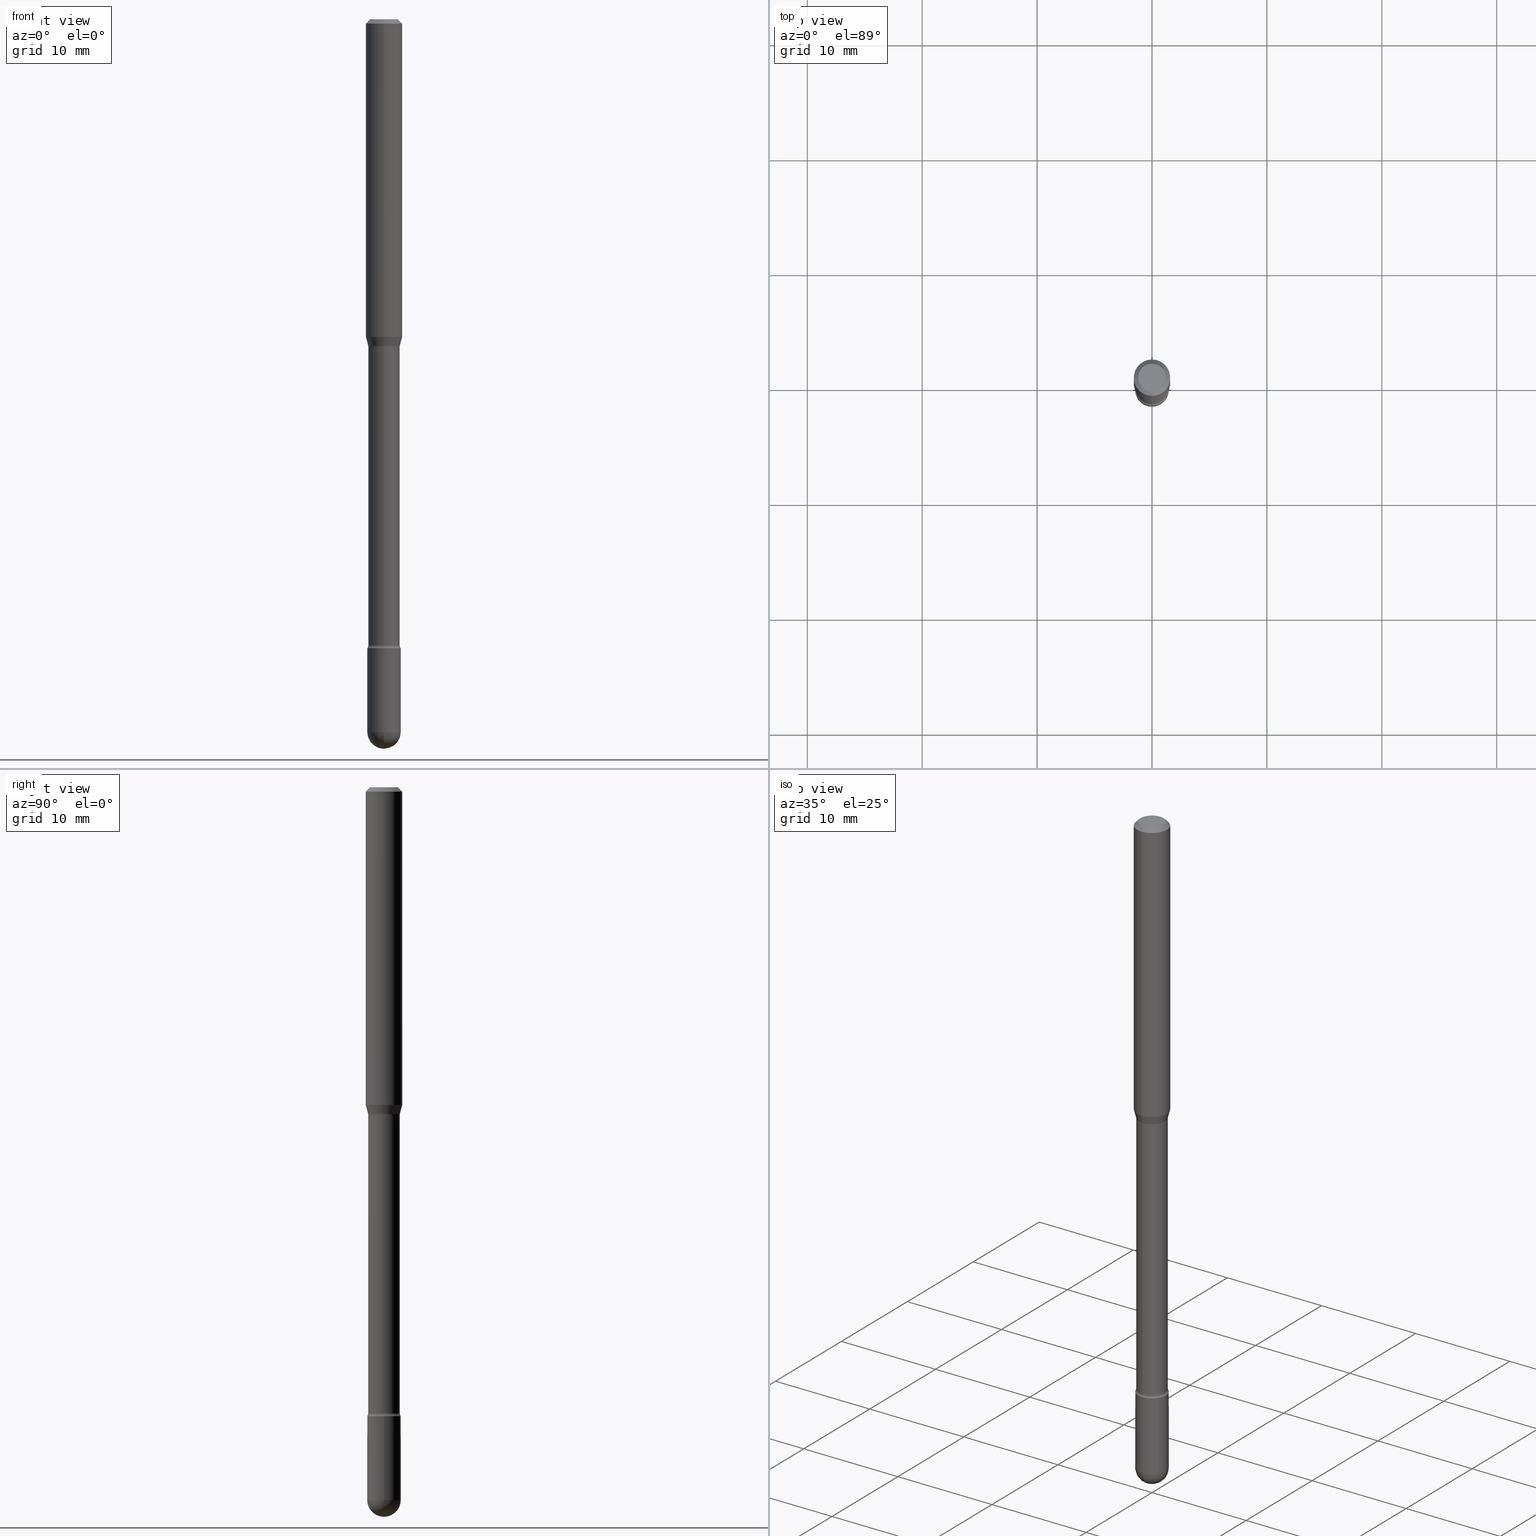
[diagram: canonical four-view strip — front | top / right | iso, engineering-drawing reading convention]
A machine part, canonical four-view strip (front | top / right | iso — engineering-drawing reading convention). The complete STEP part file that produces these views, byte-faithful:
ISO-10303-21;
HEADER;
FILE_DESCRIPTION (( 'STEP AP203' ),
    '1' );
FILE_NAME ('09348.STEP',
    '2024-04-09T22:45:30',
    ( '' ),
    ( '' ),
    'SwSTEP 2.0',
    'SolidWorks 2023',
    '' );
FILE_SCHEMA (( 'CONFIG_CONTROL_DESIGN' ));
ENDSEC;

DATA;
#1 = PLANE ( 'NONE',  #115 ) ;
#2 = PERSON ( 'UNSPECIFIED', 'UNSPECIFIED', 'UNSPECIFIED', ('UNSPECIFIED'), ('UNSPECIFIED'), ('UNSPECIFIED') ) ;
#3 = CARTESIAN_POINT ( 'NONE',  ( 2.734318658850203784E-29, -3.903715582805659800E-15, -1.118092501787273374 ) ) ;
#4 = EDGE_CURVE ( 'NONE', #555, #325, #185, .T. ) ;
#5 = CALENDAR_DATE ( 2024, 9, 4 ) ;
#6 = LINE ( 'NONE', #90, #408 ) ;
#7 = ORIENTED_EDGE ( 'NONE', *, *, #153, .F. ) ;
#8 = FACE_OUTER_BOUND ( 'NONE', #18, .T. ) ;
#9 = AXIS2_PLACEMENT_3D ( 'NONE', #434, #405, #26 ) ;
#10 = APPROVAL_PERSON_ORGANIZATION ( #554, #310, #152 ) ;
#11 = EDGE_CURVE ( 'NONE', #106, #548, #15, .T. ) ;
#12 = CARTESIAN_POINT ( 'NONE',  ( 2.734318658850203784E-29, -3.903715582805659800E-15, -1.118092501787273374 ) ) ;
#13 = CARTESIAN_POINT ( 'NONE',  ( -3.809982129783619050E-16, -0.05456111260566789273, -1.118092501787273374 ) ) ;
#14 = CARTESIAN_POINT ( 'NONE',  ( 4.440892098500625669E-16, 0.06250000000000000000, 2.598604840068803835E-16 ) ) ;
#15 = CIRCLE ( 'NONE', #534, 0.05750000000000000250 ) ;
#16 = DIRECTION ( 'NONE',  ( -2.445520969400464168E-29, 3.491406638149850481E-15, 1.000000000000000000 ) ) ;
#17 = CARTESIAN_POINT ( 'NONE',  ( 2.734318658850203784E-29, -3.903715582805659800E-15, -1.118092501787273374 ) ) ;
#18 = EDGE_LOOP ( 'NONE', ( #243, #456, #346, #506 ) ) ;
#19 = EDGE_CURVE ( 'NONE', #169, #106, #102, .T. ) ;
#20 = DIRECTION ( 'NONE',  ( 6.982962677686266711E-15, 1.000000000000000000, -4.751039988981321814E-15 ) ) ;
#21 = COORDINATED_UNIVERSAL_TIME_OFFSET ( 5, 0, .BEHIND. ) ;
#22 = ORIENTED_EDGE ( 'NONE', *, *, #140, .F. ) ;
#23 = CARTESIAN_POINT ( 'NONE',  ( 0.000000000000000000, 0.000000000000000000, 0.000000000000000000 ) ) ;
#24 = VERTEX_POINT ( 'NONE', #530 ) ;
#25 = TOROIDAL_SURFACE ( 'NONE', #557, 0.06905000000000012517, 0.01500000000000009139 ) ;
#26 = DIRECTION ( 'NONE',  ( -6.982962677686265922E-15, -1.000000000000000000, 2.503475335454092652E-15 ) ) ;
#27 = DIRECTION ( 'NONE',  ( -2.445520969400464168E-29, 3.491406638149850481E-15, 1.000000000000000000 ) ) ;
#28 = ORIENTED_EDGE ( 'NONE', *, *, #140, .T. ) ;
#29 = DIRECTION ( 'NONE',  ( -2.445520969400464168E-29, 3.491406638149850481E-15, 1.000000000000000000 ) ) ;
#30 = EDGE_LOOP ( 'NONE', ( #333, #32, #311, #60 ) ) ;
#31 = DIRECTION ( 'NONE',  ( -2.445520969400464168E-29, 3.491406638149850481E-15, 1.000000000000000000 ) ) ;
#32 = ORIENTED_EDGE ( 'NONE', *, *, #299, .F. ) ;
#33 = CIRCLE ( 'NONE', #286, 0.06250000000000000000 ) ;
#34 = CONICAL_SURFACE ( 'NONE', #229, 0.06250000000000000000, 0.7853981633974483900 ) ;
#35 = ORIENTED_EDGE ( 'NONE', *, *, #4, .F. ) ;
#36 = EDGE_CURVE ( 'NONE', #516, #161, #439, .T. ) ;
#37 = DIRECTION ( 'NONE',  ( -6.982962677686265922E-15, -1.000000000000000000, 4.751039988981327336E-15 ) ) ;
#38 = ORIENTED_EDGE ( 'NONE', *, *, #381, .F. ) ;
#39 = CARTESIAN_POINT ( 'NONE',  ( 3.963052108702488674E-16, 0.05404999999999254845, -2.145429341715430649 ) ) ;
#40 = AXIS2_PLACEMENT_3D ( 'NONE', #290, #372, #505 ) ;
#41 = CYLINDRICAL_SURFACE ( 'NONE', #486, 0.05405000000000002164 ) ;
#42 = EDGE_CURVE ( 'NONE', #548, #99, #6, .T. ) ;
#43 = EDGE_LOOP ( 'NONE', ( #264, #239, #499, #537, #212 ) ) ;
#44 = DIRECTION ( 'NONE',  ( -2.445520969400464168E-29, 3.491406638149850481E-15, 1.000000000000000000 ) ) ;
#45 = EDGE_CURVE ( 'NONE', #562, #341, #354, .T. ) ;
#46 = ADVANCED_FACE ( 'NONE', ( #353 ), #47, .T. ) ;
#47 = CONICAL_SURFACE ( 'NONE', #526, 0.05456111260566398613, 0.2617993877991491303 ) ;
#48 = FACE_OUTER_BOUND ( 'NONE', #426, .T. ) ;
#49 = CIRCLE ( 'NONE', #234, 0.05750000000000000250 ) ;
#50 = LOCAL_TIME ( 18, 45, 30.00000000000000000, #108 ) ;
#51 = DIRECTION ( 'NONE',  ( -2.445520969400463888E-29, 3.491406638149850481E-15, 1.000000000000000000 ) ) ;
#52 = DIRECTION ( 'NONE',  ( -2.445468806185136877E-29, 3.491481338843145188E-15, 1.000000000000000000 ) ) ;
#53 = DIRECTION ( 'NONE',  ( -6.982962677686265922E-15, -1.000000000000000000, 3.491406638149850876E-15 ) ) ;
#54 = SHAPE_DEFINITION_REPRESENTATION ( #133, #471 ) ;
#55 = EDGE_CURVE ( 'NONE', #341, #66, #165, .T. ) ;
#56 = EDGE_CURVE ( 'NONE', #109, #66, #307, .T. ) ;
#57 = TOROIDAL_SURFACE ( 'NONE', #385, 0.06905000000000000027, 0.01499999999999998904 ) ;
#58 = LOCAL_TIME ( 18, 45, 30.00000000000000000, #166 ) ;
#59 = DIRECTION ( 'NONE',  ( -2.445468806185136597E-29, 3.491481338843145583E-15, 1.000000000000000000 ) ) ;
#60 = ORIENTED_EDGE ( 'NONE', *, *, #4, .T. ) ;
#61 = DIRECTION ( 'NONE',  ( 2.445520969400464168E-29, -3.491406638149850481E-15, -1.000000000000000000 ) ) ;
#62 = APPROVAL_ROLE ( '' ) ;
#63 = ORIENTED_EDGE ( 'NONE', *, *, #240, .F. ) ;
#64 = DIRECTION ( 'NONE',  ( 2.445520969400464168E-29, -3.491406638149850481E-15, -1.000000000000000000 ) ) ;
#65 = DATE_AND_TIME ( #291, #50 ) ;
#66 = VERTEX_POINT ( 'NONE', #273 ) ;
#67 = CIRCLE ( 'NONE', #247, 0.05405000000000000776 ) ;
#68 = CYLINDRICAL_SURFACE ( 'NONE', #416, 0.05750000000000000250 ) ;
#69 = ORIENTED_EDGE ( 'NONE', *, *, #494, .F. ) ;
#70 = EDGE_LOOP ( 'NONE', ( #22, #82, #422, #338 ) ) ;
#71 = EDGE_CURVE ( 'NONE', #109, #562, #429, .T. ) ;
#72 = DIRECTION ( 'NONE',  ( -2.445468806185136597E-29, 3.491481338843145583E-15, 1.000000000000000000 ) ) ;
#73 = APPROVAL_DATE_TIME ( #201, #136 ) ;
#74 = ORIENTED_EDGE ( 'NONE', *, *, #56, .F. ) ;
#75 = CARTESIAN_POINT ( 'NONE',  ( -3.809982129783619050E-16, -0.05456111260566789273, -1.118092501787273374 ) ) ;
#76 = CARTESIAN_POINT ( 'NONE',  ( -1.169113584055446105E-44, 1.669184350826100908E-30, 4.780733988912460139E-16 ) ) ;
#77 = ADVANCED_FACE ( 'NONE', ( #178 ), #420, .F. ) ;
#78 = ORIENTED_EDGE ( 'NONE', *, *, #153, .T. ) ;
#79 = EDGE_CURVE ( 'NONE', #113, #106, #80, .T. ) ;
#80 = CIRCLE ( 'NONE', #440, 0.05750000000000007189 ) ;
#81 = LOCAL_TIME ( 18, 45, 30.00000000000000000, #21 ) ;
#82 = ORIENTED_EDGE ( 'NONE', *, *, #541, .T. ) ;
#83 = MANIFOLD_SOLID_BREP ( 'Body-Move/Copy2[1]', #93 ) ;
#84 = ORIENTED_EDGE ( 'NONE', *, *, #498, .T. ) ;
#85 = ORIENTED_EDGE ( 'NONE', *, *, #175, .T. ) ;
#86 = AXIS2_PLACEMENT_3D ( 'NONE', #12, #406, #190 ) ;
#87 = DIRECTION ( 'NONE',  ( -2.445520969400464168E-29, 3.491406638149850481E-15, 1.000000000000000000 ) ) ;
#88 = AXIS2_PLACEMENT_3D ( 'NONE', #458, #29, #252 ) ;
#89 = CARTESIAN_POINT ( 'NONE',  ( 0.05750000000000000250, -7.925662639173940169E-15, -2.155000000000000249 ) ) ;
#90 = CARTESIAN_POINT ( 'NONE',  ( 0.05750000000000000250, -4.015203539669603161E-16, 2.803801646082662941E-30 ) ) ;
#91 = FACE_OUTER_BOUND ( 'NONE', #70, .T. ) ;
#92 = DIRECTION ( 'NONE',  ( -2.445520969400464168E-29, 3.491406638149850481E-15, 1.000000000000000000 ) ) ;
#93 = CLOSED_SHELL ( 'NONE', ( #124, #284, #226, #122, #363 ) ) ;
#94 = AXIS2_PLACEMENT_3D ( 'NONE', #17, #230, #402 ) ;
#95 = DIRECTION ( 'NONE',  ( -2.438088387897960049E-29, 3.491481338843145188E-15, 1.000000000000000000 ) ) ;
#96 = CIRCLE ( 'NONE', #40, 0.05750000000000000250 ) ;
#97 = UNCERTAINTY_MEASURE_WITH_UNIT (LENGTH_MEASURE( 1.000000000000000082E-05 ), #549, 'distance_accuracy_value', 'NONE');
#98 = FACE_OUTER_BOUND ( 'NONE', #327, .T. ) ;
#99 = VERTEX_POINT ( 'NONE', #89 ) ;
#100 = CARTESIAN_POINT ( 'NONE',  ( 3.840483486783342056E-16, 0.05405000000000002164, 2.893628700992465494E-16 ) ) ;
#101 = CARTESIAN_POINT ( 'NONE',  ( 5.973057559107196227E-29, -8.527943170124383355E-15, -2.442499999999999893 ) ) ;
#102 = CIRCLE ( 'NONE', #205, 0.05750000000000000250 ) ;
#103 = CIRCLE ( 'NONE', #308, 0.06250000000000000000 ) ;
#104 = CARTESIAN_POINT ( 'NONE',  ( 3.668281454100716606E-31, -5.237109957224805058E-17, -0.01500000000000008271 ) ) ;
#105 = COORDINATED_UNIVERSAL_TIME_OFFSET ( 5, 0, .BEHIND. ) ;
#106 = VERTEX_POINT ( 'NONE', #520 ) ;
#107 = DIRECTION ( 'NONE',  ( 6.982962677686265922E-15, 1.000000000000000000, -3.483106191921935554E-15 ) ) ;
#108 = COORDINATED_UNIVERSAL_TIME_OFFSET ( 5, 0, .BEHIND. ) ;
#109 = VERTEX_POINT ( 'NONE', #306 ) ;
#110 = ADVANCED_FACE ( 'NONE', ( #437 ), #351, .T. ) ;
#111 = CARTESIAN_POINT ( 'NONE',  ( -3.774291327288904667E-16, -0.05405000000000752258, -2.145429341715430205 ) ) ;
#112 = PERSON_AND_ORGANIZATION ( #2, #259 ) ;
#113 = VERTEX_POINT ( 'NONE', #347 ) ;
#114 = AXIS2_PLACEMENT_3D ( 'NONE', #132, #217, #172 ) ;
#115 = AXIS2_PLACEMENT_3D ( 'NONE', #179, #442, #120 ) ;
#116 = EDGE_CURVE ( 'NONE', #521, #154, #131, .T. ) ;
#117 = DIRECTION ( 'NONE',  ( -6.982962677686265922E-15, -1.000000000000000000, 3.483106191921935554E-15 ) ) ;
#118 = DIRECTION ( 'NONE',  ( -2.445468806185136597E-29, 3.491481338843145583E-15, 1.000000000000000000 ) ) ;
#119 = DIRECTION ( 'NONE',  ( -6.982962677686265922E-15, -1.000000000000000000, 3.491406638149850087E-15 ) ) ;
#120 = DIRECTION ( 'NONE',  ( 6.982962677686265922E-15, 1.000000000000000000, -3.491406638149850481E-15 ) ) ;
#121 = ORIENTED_EDGE ( 'NONE', *, *, #375, .F. ) ;
#122 = ADVANCED_FACE ( 'NONE', ( #98 ), #495, .T. ) ;
#123 = ORIENTED_EDGE ( 'NONE', *, *, #79, .F. ) ;
#124 = ADVANCED_FACE ( 'NONE', ( #447 ), #138, .T. ) ;
#125 = CC_DESIGN_DATE_AND_TIME_ASSIGNMENT ( #65, #418, ( #156 ) ) ;
#126 = AXIS2_PLACEMENT_3D ( 'NONE', #101, #287, #20 ) ;
#127 = VECTOR ( 'NONE', #374, 39.37007874015748143 ) ;
#128 = LOCAL_TIME ( 18, 45, 30.00000000000000000, #222 ) ;
#129 = ORIENTED_EDGE ( 'NONE', *, *, #55, .T. ) ;
#130 = EDGE_LOOP ( 'NONE', ( #7, #552, #480, #483 ) ) ;
#131 = LINE ( 'NONE', #312, #193 ) ;
#132 = CARTESIAN_POINT ( 'NONE',  ( 4.015203539670130219E-16, 0.05749999999999248074, -2.155000000000000249 ) ) ;
#133 = PRODUCT_DEFINITION_SHAPE ( 'NONE', 'NONE',  #275 ) ;
#134 = AXIS2_PLACEMENT_3D ( 'NONE', #463, #501, #508 ) ;
#135 = LOCAL_TIME ( 18, 45, 30.00000000000000000, #105 ) ;
#136 = APPROVAL ( #160, 'UNSPECIFIED' ) ;
#137 = CARTESIAN_POINT ( 'NONE',  ( 4.906297590423765932E-16, 0.06904999999999608673, -1.121974787463811518 ) ) ;
#138 = CYLINDRICAL_SURFACE ( 'NONE', #479, 0.05750000000000000250 ) ;
#139 = DESIGN_CONTEXT ( 'detailed design', #496, 'design' ) ;
#140 = EDGE_CURVE ( 'NONE', #433, #289, #322, .T. ) ;
#141 = CARTESIAN_POINT ( 'NONE',  ( -4.364351673553916201E-16, -0.06250000000000000000, 6.962863137756116444E-16 ) ) ;
#142 = CARTESIAN_POINT ( 'NONE',  ( -4.364351673553912750E-16, -0.06250000000000005551, -0.01499999999999986587 ) ) ;
#143 = CIRCLE ( 'NONE', #296, 0.01500000000000009659 ) ;
#144 = DIRECTION ( 'NONE',  ( -1.000000000000000000, 6.982962677686266711E-15, -4.883557194083112901E-29 ) ) ;
#145 = TOROIDAL_SURFACE ( 'NONE', #457, 0.06905000000000012517, 0.01500000000000009139 ) ;
#146 = CARTESIAN_POINT ( 'NONE',  ( 4.440892098500893388E-16, 0.06249999999999993755, -0.01500000000000030129 ) ) ;
#147 = ORIENTED_EDGE ( 'NONE', *, *, #79, .T. ) ;
#148 = SPHERICAL_SURFACE ( 'NONE', #126, 0.05750000000000007189 ) ;
#149 = EDGE_LOOP ( 'NONE', ( #74, #423, #461, #129 ) ) ;
#150 = DIRECTION ( 'NONE',  ( -6.982962677686265922E-15, -1.000000000000000000, 4.751039988981327336E-15 ) ) ;
#151 = DIRECTION ( 'NONE',  ( -2.445520969400464168E-29, 3.491406638149850481E-15, 1.000000000000000000 ) ) ;
#152 = APPROVAL_ROLE ( '' ) ;
#153 = EDGE_CURVE ( 'NONE', #24, #154, #319, .T. ) ;
#154 = VERTEX_POINT ( 'NONE', #146 ) ;
#155 = CLOSED_SHELL ( 'NONE', ( #277, #487, #260, #318, #401, #46, #192, #313, #348, #476, #77, #512, #110, #515 ) ) ;
#156 = SECURITY_CLASSIFICATION ( '', '', #158 ) ;
#157 = FACE_OUTER_BOUND ( 'NONE', #130, .T. ) ;
#158 = SECURITY_CLASSIFICATION_LEVEL ( 'unclassified' ) ;
#159 = DIRECTION ( 'NONE',  ( 1.000000000000000000, -6.982962677686265922E-15, 4.876176775795935232E-29 ) ) ;
#160 = APPROVAL_STATUS ( 'not_yet_approved' ) ;
#161 = VERTEX_POINT ( 'NONE', #142 ) ;
#162 = CARTESIAN_POINT ( 'NONE',  ( 2.661861953829350212E-29, -3.800271030886609778E-15, -1.088464170676043397 ) ) ;
#163 = ORIENTED_EDGE ( 'NONE', *, *, #381, .T. ) ;
#164 = DIRECTION ( 'NONE',  ( 0.000000000000000000, 0.000000000000000000, 1.000000000000000000 ) ) ;
#165 = CIRCLE ( 'NONE', #448, 0.05405000000000000776 ) ;
#166 = COORDINATED_UNIVERSAL_TIME_OFFSET ( 5, 0, .BEHIND. ) ;
#167 = ORIENTED_EDGE ( 'NONE', *, *, #71, .T. ) ;
#168 =( NAMED_UNIT ( * ) PLANE_ANGLE_UNIT ( ) SI_UNIT ( $, .RADIAN. ) );
#169 = VERTEX_POINT ( 'NONE', #317 ) ;
#170 = APPROVAL_DATE_TIME ( #182, #444 ) ;
#171 = ORIENTED_EDGE ( 'NONE', *, *, #116, .T. ) ;
#172 = DIRECTION ( 'NONE',  ( -6.982962677686265922E-15, -1.000000000000000000, 3.491406638149850481E-15 ) ) ;
#173 = AXIS2_PLACEMENT_3D ( 'NONE', #279, #194, #361 ) ;
#174 = AXIS2_PLACEMENT_3D ( 'NONE', #453, #196, #53 ) ;
#175 = EDGE_CURVE ( 'NONE', #377, #99, #49, .T. ) ;
#176 = ORIENTED_EDGE ( 'NONE', *, *, #281, .F. ) ;
#177 = DIRECTION ( 'NONE',  ( -6.982962677686265922E-15, -1.000000000000000000, 3.491406638149850876E-15 ) ) ;
#178 = FACE_OUTER_BOUND ( 'NONE', #297, .T. ) ;
#179 = CARTESIAN_POINT ( 'NONE',  ( 3.316907271900976096E-16, 0.04749999999999999362, 3.181959395626671891E-17 ) ) ;
#180 = DIRECTION ( 'NONE',  ( -2.445520969400464168E-29, 3.491406638149850481E-15, 1.000000000000000000 ) ) ;
#181 = CC_DESIGN_PERSON_AND_ORGANIZATION_ASSIGNMENT ( #438, #543, ( #383 ) ) ;
#182 = DATE_AND_TIME ( #5, #128 ) ;
#183 = DIRECTION ( 'NONE',  ( -7.105427357601000281E-15, -1.000000000000000000, 0.000000000000000000 ) ) ;
#184 = EDGE_CURVE ( 'NONE', #289, #341, #403, .T. ) ;
#185 = CIRCLE ( 'NONE', #500, 0.05750000000000000250 ) ;
#186 =( GEOMETRIC_REPRESENTATION_CONTEXT ( 3 ) GLOBAL_UNCERTAINTY_ASSIGNED_CONTEXT ( ( #97 ) ) GLOBAL_UNIT_ASSIGNED_CONTEXT ( ( #549, #168, #378 ) ) REPRESENTATION_CONTEXT ( 'NONE', 'WORKASPACE' ) );
#187 = ORIENTED_EDGE ( 'NONE', *, *, #19, .F. ) ;
#188 = PLANE ( 'NONE',  #545 ) ;
#189 = EDGE_CURVE ( 'NONE', #289, #555, #143, .T. ) ;
#190 = DIRECTION ( 'NONE',  ( -6.982962677686265922E-15, -1.000000000000000000, 2.503475335454092652E-15 ) ) ;
#191 = CARTESIAN_POINT ( 'NONE',  ( -3.773273898774340269E-16, -0.04749999999999999362, 8.309123495764096465E-17 ) ) ;
#192 = ADVANCED_FACE ( 'NONE', ( #48 ), #467, .T. ) ;
#193 = VECTOR ( 'NONE', #314, 39.37007874015748143 ) ;
#194 = DIRECTION ( 'NONE',  ( -2.445468806185136597E-29, 3.491481338843145583E-15, 1.000000000000000000 ) ) ;
#195 = ORIENTED_EDGE ( 'NONE', *, *, #366, .F. ) ;
#196 = DIRECTION ( 'NONE',  ( -2.445520969400464168E-29, 3.491406638149850481E-15, 1.000000000000000000 ) ) ;
#197 = DIRECTION ( 'NONE',  ( 6.982962677686266711E-15, 1.000000000000000000, -4.751039988981321814E-15 ) ) ;
#198 = ORIENTED_EDGE ( 'NONE', *, *, #240, .T. ) ;
#199 = CC_DESIGN_DATE_AND_TIME_ASSIGNMENT ( #547, #288, ( #275 ) ) ;
#200 = DIRECTION ( 'NONE',  ( -6.982962677686265922E-15, -1.000000000000000000, 3.491406638149850876E-15 ) ) ;
#201 = DATE_AND_TIME ( #474, #81 ) ;
#202 = EDGE_LOOP ( 'NONE', ( #69, #28, #261, #263 ) ) ;
#203 = EDGE_CURVE ( 'NONE', #562, #109, #359, .T. ) ;
#204 = CARTESIAN_POINT ( 'NONE',  ( 3.668281454100716606E-31, -5.237109957224805058E-17, -0.01500000000000008271 ) ) ;
#205 = AXIS2_PLACEMENT_3D ( 'NONE', #564, #343, #484 ) ;
#206 = CC_DESIGN_APPROVAL ( #444, ( #156 ) ) ;
#207 = FACE_OUTER_BOUND ( 'NONE', #30, .T. ) ;
#208 = CARTESIAN_POINT ( 'NONE',  ( -1.169113584055446105E-44, 1.669184350826100908E-30, 4.780733988912460139E-16 ) ) ;
#209 = ORIENTED_EDGE ( 'NONE', *, *, #404, .T. ) ;
#210 = FACE_OUTER_BOUND ( 'NONE', #149, .T. ) ;
#211 = DIRECTION ( 'NONE',  ( -6.982962677686265922E-15, -1.000000000000000000, 3.483106191921935554E-15 ) ) ;
#212 = ORIENTED_EDGE ( 'NONE', *, *, #175, .F. ) ;
#213 = AXIS2_PLACEMENT_3D ( 'NONE', #208, #151, #285 ) ;
#214 = PRODUCT_DEFINITION_FORMATION_WITH_SPECIFIED_SOURCE ( 'ANY', '', #383, .NOT_KNOWN. ) ;
#215 = EDGE_LOOP ( 'NONE', ( #292, #502, #544, #395 ) ) ;
#216 = ORIENTED_EDGE ( 'NONE', *, *, #489, .F. ) ;
#217 = DIRECTION ( 'NONE',  ( -2.445520969400463888E-29, 3.491406638149850481E-15, 1.000000000000000000 ) ) ;
#218 = EDGE_CURVE ( 'NONE', #169, #377, #323, .T. ) ;
#219 = CARTESIAN_POINT ( 'NONE',  ( 5.973057559107196227E-29, -8.527943170124383355E-15, -2.442499999999999893 ) ) ;
#220 = CIRCLE ( 'NONE', #236, 0.04749999999999999362 ) ;
#221 = DIRECTION ( 'NONE',  ( -6.982962677686266711E-15, -1.000000000000000000, 3.491406638149851270E-15 ) ) ;
#222 = COORDINATED_UNIVERSAL_TIME_OFFSET ( 5, 0, .BEHIND. ) ;
#223 = EDGE_LOOP ( 'NONE', ( #176, #147, #187, #63 ) ) ;
#224 = DIRECTION ( 'NONE',  ( -2.445520969400463888E-29, 3.491406638149850481E-15, 1.000000000000000000 ) ) ;
#225 = CARTESIAN_POINT ( 'NONE',  ( -4.821735728941850689E-16, -0.06905000000000760529, -2.145429341715430205 ) ) ;
#226 = ADVANCED_FACE ( 'NONE', ( #491 ), #188, .T. ) ;
#227 = AXIS2_PLACEMENT_3D ( 'NONE', #357, #92, #232 ) ;
#228 = CC_DESIGN_PERSON_AND_ORGANIZATION_ASSIGNMENT ( #380, #411, ( #275 ) ) ;
#229 = AXIS2_PLACEMENT_3D ( 'NONE', #204, #61, #107 ) ;
#230 = DIRECTION ( 'NONE',  ( -2.445520969400464168E-29, 3.491406638149850481E-15, 1.000000000000000000 ) ) ;
#231 = LINE ( 'NONE', #13, #315 ) ;
#232 = DIRECTION ( 'NONE',  ( -6.982962677686265922E-15, -1.000000000000000000, 5.054297860618430366E-15 ) ) ;
#233 = CARTESIAN_POINT ( 'NONE',  ( -4.364351673553650454E-16, -0.06250000000000381639, -1.088464170676042952 ) ) ;
#234 = AXIS2_PLACEMENT_3D ( 'NONE', #280, #320, #235 ) ;
#235 = DIRECTION ( 'NONE',  ( 1.000000000000000000, -6.982962677686273810E-15, 0.000000000000000000 ) ) ;
#236 = AXIS2_PLACEMENT_3D ( 'NONE', #294, #462, #237 ) ;
#237 = DIRECTION ( 'NONE',  ( -6.982962677686266711E-15, -1.000000000000000000, 3.491406638149851270E-15 ) ) ;
#238 = LINE ( 'NONE', #435, #431 ) ;
#239 = ORIENTED_EDGE ( 'NONE', *, *, #19, .T. ) ;
#240 = EDGE_CURVE ( 'NONE', #303, #169, #415, .T. ) ;
#241 = DIRECTION ( 'NONE',  ( -6.982962677686265922E-15, -1.000000000000000000, 4.370956789862821150E-15 ) ) ;
#242 = PERSON_AND_ORGANIZATION_ROLE ( 'creator' ) ;
#243 = ORIENTED_EDGE ( 'NONE', *, *, #71, .F. ) ;
#244 = EDGE_CURVE ( 'NONE', #562, #516, #231, .T. ) ;
#245 = CARTESIAN_POINT ( 'NONE',  ( 2.743754344068948832E-29, -3.917354033082401123E-15, -1.121974787463811296 ) ) ;
#246 = PERSON_AND_ORGANIZATION ( #2, #259 ) ;
#247 = AXIS2_PLACEMENT_3D ( 'NONE', #282, #455, #452 ) ;
#248 = ORIENTED_EDGE ( 'NONE', *, *, #42, .F. ) ;
#249 = AXIS2_PLACEMENT_3D ( 'NONE', #293, #255, #427 ) ;
#250 = CARTESIAN_POINT ( 'NONE',  ( 3.668281454100716606E-31, -5.237109957224805058E-17, -0.01500000000000008271 ) ) ;
#251 = EDGE_LOOP ( 'NONE', ( #519, #330, #257, #475 ) ) ;
#252 = DIRECTION ( 'NONE',  ( -6.982962677686265922E-15, -1.000000000000000000, 3.491406638149849692E-15 ) ) ;
#253 = PERSON_AND_ORGANIZATION ( #2, #259 ) ;
#254 = VERTEX_POINT ( 'NONE', #191 ) ;
#255 = DIRECTION ( 'NONE',  ( 1.000000000000000000, -7.105427357601001070E-15, 4.926314593722432543E-29 ) ) ;
#256 = DIRECTION ( 'NONE',  ( -2.445520969400464168E-29, 3.491406638149850481E-15, 1.000000000000000000 ) ) ;
#257 = ORIENTED_EDGE ( 'NONE', *, *, #55, .F. ) ;
#258 = CARTESIAN_POINT ( 'NONE',  ( -1.169113584055446105E-44, 1.669184350826100908E-30, 4.780733988912460139E-16 ) ) ;
#259 = ORGANIZATION ( 'UNSPECIFIED', 'UNSPECIFIED', '' ) ;
#260 = ADVANCED_FACE ( 'NONE', ( #91 ), #25, .F. ) ;
#261 = ORIENTED_EDGE ( 'NONE', *, *, #184, .T. ) ;
#262 = DIRECTION ( 'NONE',  ( -1.000000000000000000, 7.105427357601001070E-15, -4.926315508542082329E-29 ) ) ;
#263 = ORIENTED_EDGE ( 'NONE', *, *, #268, .F. ) ;
#264 = ORIENTED_EDGE ( 'NONE', *, *, #218, .F. ) ;
#265 = VECTOR ( 'NONE', #51, 39.37007874015748143 ) ;
#266 = TOROIDAL_SURFACE ( 'NONE', #174, 0.06905000000000000027, 0.01499999999999998904 ) ;
#267 = FACE_OUTER_BOUND ( 'NONE', #436, .T. ) ;
#268 = EDGE_CURVE ( 'NONE', #66, #341, #67, .T. ) ;
#269 = PERSON_AND_ORGANIZATION ( #2, #259 ) ;
#270 = DIRECTION ( 'NONE',  ( -1.000000000000000000, 6.982962677686265922E-15, -4.883557194083112340E-29 ) ) ;
#271 = EDGE_CURVE ( 'NONE', #516, #24, #278, .T. ) ;
#272 = MANIFOLD_SOLID_BREP ( 'Body-Move/Copy2[2]', #155 ) ;
#273 = CARTESIAN_POINT ( 'NONE',  ( 3.840483486783868128E-16, 0.05404999999999609422, -1.121974787463811296 ) ) ;
#274 = CARTESIAN_POINT ( 'NONE',  ( -3.774291327289428273E-16, -0.05405000000000002164, 6.667839276832456264E-16 ) ) ;
#275 = PRODUCT_DEFINITION ( 'UNKNOWN', '', #214, #139 ) ;
#276 = CARTESIAN_POINT ( 'NONE',  ( 0.000000000000000000, 0.000000000000000000, 0.000000000000000000 ) ) ;
#277 = ADVANCED_FACE ( 'NONE', ( #8 ), #57, .F. ) ;
#278 = CIRCLE ( 'NONE', #283, 0.06250000000000000000 ) ;
#279 = CARTESIAN_POINT ( 'NONE',  ( 5.973057559107196227E-29, -8.527943170124383355E-15, -2.442499999999999893 ) ) ;
#280 = CARTESIAN_POINT ( 'NONE',  ( 5.269985277328969904E-29, -7.524142285206980149E-15, -2.155000000000000249 ) ) ;
#281 = EDGE_CURVE ( 'NONE', #113, #303, #371, .T. ) ;
#282 = CARTESIAN_POINT ( 'NONE',  ( 2.743812869881379351E-29, -3.917270220787918029E-15, -1.121974787463811074 ) ) ;
#283 = AXIS2_PLACEMENT_3D ( 'NONE', #446, #44, #398 ) ;
#284 = ADVANCED_FACE ( 'NONE', ( #417 ), #148, .T. ) ;
#285 = DIRECTION ( 'NONE',  ( -6.982962677686265922E-15, -1.000000000000000000, 3.491406638149849692E-15 ) ) ;
#286 = AXIS2_PLACEMENT_3D ( 'NONE', #104, #459, #117 ) ;
#287 = DIRECTION ( 'NONE',  ( -1.000000000000000000, 6.982962677686266711E-15, -4.883557194083112901E-29 ) ) ;
#288 = DATE_TIME_ROLE ( 'creation_date' ) ;
#289 = VERTEX_POINT ( 'NONE', #111 ) ;
#290 = CARTESIAN_POINT ( 'NONE',  ( 5.269985277328969904E-29, -7.524142285206980149E-15, -2.155000000000000249 ) ) ;
#291 = CALENDAR_DATE ( 2024, 9, 4 ) ;
#292 = ORIENTED_EDGE ( 'NONE', *, *, #498, .F. ) ;
#293 = CARTESIAN_POINT ( 'NONE',  ( 4.906297590424024283E-16, 0.06904999999999263116, -2.145429341715430649 ) ) ;
#294 = CARTESIAN_POINT ( 'NONE',  ( 2.023932173325802627E-45, -2.888802131460303294E-31, -8.275058035447693568E-17 ) ) ;
#295 = DIRECTION ( 'NONE',  ( 1.000000000000000000, -6.982962677686273810E-15, 0.000000000000000000 ) ) ;
#296 = AXIS2_PLACEMENT_3D ( 'NONE', #225, #490, #409 ) ;
#297 = EDGE_LOOP ( 'NONE', ( #35, #216 ) ) ;
#298 = CIRCLE ( 'NONE', #441, 0.05750000000000000250 ) ;
#299 = EDGE_CURVE ( 'NONE', #289, #433, #517, .T. ) ;
#300 = CARTESIAN_POINT ( 'NONE',  ( -3.774291327289153158E-16, -0.05405000000000392824, -1.121974787463811074 ) ) ;
#301 = DIRECTION ( 'NONE',  ( 1.000000000000000000, -6.982962677686273810E-15, 0.000000000000000000 ) ) ;
#302 = APPROVAL_STATUS ( 'not_yet_approved' ) ;
#303 = VERTEX_POINT ( 'NONE', #379 ) ;
#304 = DIRECTION ( 'NONE',  ( -6.982962677686265922E-15, -1.000000000000000000, 3.491406638149850876E-15 ) ) ;
#305 = ORIENTED_EDGE ( 'NONE', *, *, #244, .F. ) ;
#306 = CARTESIAN_POINT ( 'NONE',  ( 4.158846160097752610E-16, 0.05456111260566008647, -1.118092501787273596 ) ) ;
#307 = CIRCLE ( 'NONE', #485, 0.01499999999999999424 ) ;
#308 = AXIS2_PLACEMENT_3D ( 'NONE', #424, #31, #211 ) ;
#309 = ORIENTED_EDGE ( 'NONE', *, *, #36, .F. ) ;
#310 = APPROVAL ( #302, 'UNSPECIFIED' ) ;
#311 = ORIENTED_EDGE ( 'NONE', *, *, #189, .T. ) ;
#312 = CARTESIAN_POINT ( 'NONE',  ( 4.364351673553919652E-16, 0.06249999999999995143, -0.01500000000000030129 ) ) ;
#313 = ADVANCED_FACE ( 'NONE', ( #157 ), #542, .T. ) ;
#314 = DIRECTION ( 'NONE',  ( 4.937700262164548042E-15, 0.7071067811865451302, -0.7071067811865499042 ) ) ;
#315 = VECTOR ( 'NONE', #488, 39.37007874015748854 ) ;
#316 = DIRECTION ( 'NONE',  ( 7.105427357601001859E-15, 1.000000000000000000, 0.000000000000000000 ) ) ;
#317 = CARTESIAN_POINT ( 'NONE',  ( -0.05750000000000000250, -7.617480654603624176E-15, -2.442499999999999893 ) ) ;
#318 = ADVANCED_FACE ( 'NONE', ( #413 ), #535, .T. ) ;
#319 = LINE ( 'NONE', #14, #265 ) ;
#320 = DIRECTION ( 'NONE',  ( -2.445468806185136597E-29, 3.491481338843145583E-15, 1.000000000000000000 ) ) ;
#321 = EDGE_CURVE ( 'NONE', #161, #154, #33, .T. ) ;
#322 = CIRCLE ( 'NONE', #227, 0.05405000000000003552 ) ;
#323 = LINE ( 'NONE', #364, #344 ) ;
#324 = DIRECTION ( 'NONE',  ( -2.445520969400464168E-29, 3.491406638149850481E-15, 1.000000000000000000 ) ) ;
#325 = VERTEX_POINT ( 'NONE', #503 ) ;
#326 = DIRECTION ( 'NONE',  ( -4.851104656540964275E-15, -0.7071067811865500152, -0.7071067811865450192 ) ) ;
#327 = EDGE_LOOP ( 'NONE', ( #123, #368, #38, #386 ) ) ;
#328 = DIRECTION ( 'NONE',  ( 6.982962677686265922E-15, 1.000000000000000000, -3.483106191921935554E-15 ) ) ;
#329 = APPROVAL_PERSON_ORGANIZATION ( #246, #136, #62 ) ;
#330 = ORIENTED_EDGE ( 'NONE', *, *, #494, .T. ) ;
#331 = CARTESIAN_POINT ( 'NONE',  ( 5.246692443532119880E-29, -7.490566245346716634E-15, -2.145429341715430205 ) ) ;
#332 = PERSON_AND_ORGANIZATION_ROLE ( 'classification_officer' ) ;
#333 = ORIENTED_EDGE ( 'NONE', *, *, #541, .F. ) ;
#334 = LINE ( 'NONE', #473, #340 ) ;
#335 = PERSON_AND_ORGANIZATION_ROLE ( 'design_supplier' ) ;
#336 = CYLINDRICAL_SURFACE ( 'NONE', #88, 0.06250000000000000000 ) ;
#337 = VECTOR ( 'NONE', #528, 39.37007874015748143 ) ;
#338 = ORIENTED_EDGE ( 'NONE', *, *, #189, .F. ) ;
#339 = DIRECTION ( 'NONE',  ( 1.000000000000000000, 0.000000000000000000, 0.000000000000000000 ) ) ;
#340 = VECTOR ( 'NONE', #326, 39.37007874015748143 ) ;
#341 = VERTEX_POINT ( 'NONE', #300 ) ;
#342 = ORIENTED_EDGE ( 'NONE', *, *, #352, .F. ) ;
#343 = DIRECTION ( 'NONE',  ( -2.445468806185136597E-29, 3.491481338843145583E-15, 1.000000000000000000 ) ) ;
#344 = VECTOR ( 'NONE', #52, 39.37007874015748143 ) ;
#345 = AXIS2_PLACEMENT_3D ( 'NONE', #513, #87, #221 ) ;
#346 = ORIENTED_EDGE ( 'NONE', *, *, #268, .T. ) ;
#347 = CARTESIAN_POINT ( 'NONE',  ( 6.116130618544232584E-29, -8.725182487560315771E-15, -2.500000000000000000 ) ) ;
#348 = ADVANCED_FACE ( 'NONE', ( #376 ), #34, .T. ) ;
#349 = FACE_OUTER_BOUND ( 'NONE', #251, .T. ) ;
#350 = DIRECTION ( 'NONE',  ( -6.982962677686265922E-15, -1.000000000000000000, 2.503475335454092652E-15 ) ) ;
#351 = CYLINDRICAL_SURFACE ( 'NONE', #399, 0.05405000000000002164 ) ;
#352 = EDGE_CURVE ( 'NONE', #24, #516, #468, .T. ) ;
#353 = FACE_OUTER_BOUND ( 'NONE', #465, .T. ) ;
#354 = CIRCLE ( 'NONE', #492, 0.01499999999999999424 ) ;
#355 = AXIS2_PLACEMENT_3D ( 'NONE', #421, #72, #295 ) ;
#356 = DIRECTION ( 'NONE',  ( 1.000000000000000000, -6.982962677686265922E-15, 4.876176775795935232E-29 ) ) ;
#357 = CARTESIAN_POINT ( 'NONE',  ( 5.246692443532119880E-29, -7.490566245346716634E-15, -2.145429341715430205 ) ) ;
#358 = CARTESIAN_POINT ( 'NONE',  ( 5.973057559107196227E-29, -8.527943170124383355E-15, -2.442499999999999893 ) ) ;
#359 = CIRCLE ( 'NONE', #86, 0.05456111260566398613 ) ;
#360 = CIRCLE ( 'NONE', #345, 0.04749999999999999362 ) ;
#361 = DIRECTION ( 'NONE',  ( 1.000000000000000000, -6.982962677686273810E-15, 0.000000000000000000 ) ) ;
#362 = ORIENTED_EDGE ( 'NONE', *, *, #451, .F. ) ;
#363 = ADVANCED_FACE ( 'NONE', ( #550 ), #68, .T. ) ;
#364 = CARTESIAN_POINT ( 'NONE',  ( -0.05750000000000000250, 4.085620730620576246E-16, -2.828387676896570712E-30 ) ) ;
#365 = ORIENTED_EDGE ( 'NONE', *, *, #428, .T. ) ;
#366 = EDGE_CURVE ( 'NONE', #254, #161, #334, .T. ) ;
#367 = DIRECTION ( 'NONE',  ( -6.982962677686265922E-15, -1.000000000000000000, 5.054297860618430366E-15 ) ) ;
#368 = ORIENTED_EDGE ( 'NONE', *, *, #281, .T. ) ;
#369 = LINE ( 'NONE', #100, #127 ) ;
#370 = VECTOR ( 'NONE', #224, 39.37007874015748143 ) ;
#371 = CIRCLE ( 'NONE', #134, 0.05750000000000007189 ) ;
#372 = DIRECTION ( 'NONE',  ( -2.445468806185136597E-29, 3.491481338843145583E-15, 1.000000000000000000 ) ) ;
#373 = APPROVAL_PERSON_ORGANIZATION ( #269, #444, #443 ) ;
#374 = DIRECTION ( 'NONE',  ( -2.445520969400463888E-29, 3.491406638149850481E-15, 1.000000000000000000 ) ) ;
#375 = EDGE_CURVE ( 'NONE', #99, #377, #96, .T. ) ;
#376 = FACE_OUTER_BOUND ( 'NONE', #559, .T. ) ;
#377 = VERTEX_POINT ( 'NONE', #546 ) ;
#378 =( NAMED_UNIT ( * ) SI_UNIT ( $, .STERADIAN. ) SOLID_ANGLE_UNIT ( ) );
#379 = CARTESIAN_POINT ( 'NONE',  ( 4.015203539670203189E-16, 0.05749999999999150929, -2.442500000000000338 ) ) ;
#380 = PERSON_AND_ORGANIZATION ( #2, #259 ) ;
#381 = EDGE_CURVE ( 'NONE', #548, #303, #481, .T. ) ;
#382 = EDGE_LOOP ( 'NONE', ( #414, #78, #566, #309 ) ) ;
#383 = PRODUCT ( '09348', '09348', '', ( #522 ) ) ;
#384 = DIRECTION ( 'NONE',  ( -2.445520969400464168E-29, 3.491406638149850481E-15, 1.000000000000000000 ) ) ;
#385 = AXIS2_PLACEMENT_3D ( 'NONE', #245, #553, #200 ) ;
#386 = ORIENTED_EDGE ( 'NONE', *, *, #11, .F. ) ;
#387 = APPLICATION_PROTOCOL_DEFINITION ( 'international standard', 'config_control_design', 1994, #532 ) ;
#388 = CC_DESIGN_APPROVAL ( #310, ( #275 ) ) ;
#389 = CARTESIAN_POINT ( 'NONE',  ( 5.270097689058001057E-29, -7.523981305212928744E-15, -2.155000000000000249 ) ) ;
#390 = CARTESIAN_POINT ( 'NONE',  ( 5.973057559107196227E-29, -8.527943170124383355E-15, -2.442499999999999893 ) ) ;
#391 = CARTESIAN_POINT ( 'NONE',  ( 5.246580531039396792E-29, -7.490726510405958844E-15, -2.145429341715430205 ) ) ;
#392 = ORIENTED_EDGE ( 'NONE', *, *, #375, .T. ) ;
#393 = AXIS2_PLACEMENT_3D ( 'NONE', #358, #144, #197 ) ;
#394 = DIRECTION ( 'NONE',  ( -2.445468806185136877E-29, 3.491481338843145188E-15, 1.000000000000000000 ) ) ;
#395 = ORIENTED_EDGE ( 'NONE', *, *, #116, .F. ) ;
#396 = DIRECTION ( 'NONE',  ( -2.445520969400464168E-29, 3.491406638149850481E-15, 1.000000000000000000 ) ) ;
#397 = PRODUCT_RELATED_PRODUCT_CATEGORY ( 'detail', '', ( #383 ) ) ;
#398 = DIRECTION ( 'NONE',  ( -6.982962677686265922E-15, -1.000000000000000000, 4.370956789862821150E-15 ) ) ;
#399 = AXIS2_PLACEMENT_3D ( 'NONE', #258, #524, #177 ) ;
#400 = CC_DESIGN_APPROVAL ( #136, ( #214 ) ) ;
#401 = ADVANCED_FACE ( 'NONE', ( #469 ), #336, .T. ) ;
#402 = DIRECTION ( 'NONE',  ( -6.982962677686265922E-15, -1.000000000000000000, 2.503475335454092652E-15 ) ) ;
#403 = LINE ( 'NONE', #274, #337 ) ;
#404 = EDGE_CURVE ( 'NONE', #154, #161, #103, .T. ) ;
#405 = DIRECTION ( 'NONE',  ( -2.445520969400464168E-29, 3.491406638149850481E-15, 1.000000000000000000 ) ) ;
#406 = DIRECTION ( 'NONE',  ( -2.445520969400464168E-29, 3.491406638149850481E-15, 1.000000000000000000 ) ) ;
#407 = LENGTH_MEASURE_WITH_UNIT ( LENGTH_MEASURE( 0.02539999999999999897 ), #466 );
#408 = VECTOR ( 'NONE', #394, 39.37007874015748143 ) ;
#409 = DIRECTION ( 'NONE',  ( -6.982962677686259611E-15, -1.000000000000000000, 0.000000000000000000 ) ) ;
#410 = DIRECTION ( 'NONE',  ( -6.982962677686266711E-15, -1.000000000000000000, 0.000000000000000000 ) ) ;
#411 = PERSON_AND_ORGANIZATION_ROLE ( 'creator' ) ;
#412 = EDGE_LOOP ( 'NONE', ( #392, #85 ) ) ;
#413 = FACE_OUTER_BOUND ( 'NONE', #215, .T. ) ;
#414 = ORIENTED_EDGE ( 'NONE', *, *, #271, .T. ) ;
#415 = CIRCLE ( 'NONE', #173, 0.05750000000000000250 ) ;
#416 = AXIS2_PLACEMENT_3D ( 'NONE', #23, #59, #159 ) ;
#417 = FACE_OUTER_BOUND ( 'NONE', #223, .T. ) ;
#418 = DATE_TIME_ROLE ( 'classification_date' ) ;
#419 = ORIENTED_EDGE ( 'NONE', *, *, #451, .T. ) ;
#420 = PLANE ( 'NONE',  #114 ) ;
#421 = CARTESIAN_POINT ( 'NONE',  ( 5.973057559107196227E-29, -8.527943170124383355E-15, -2.442499999999999893 ) ) ;
#422 = ORIENTED_EDGE ( 'NONE', *, *, #489, .T. ) ;
#423 = ORIENTED_EDGE ( 'NONE', *, *, #203, .F. ) ;
#424 = CARTESIAN_POINT ( 'NONE',  ( 3.668281454100716606E-31, -5.237109957224805058E-17, -0.01500000000000008271 ) ) ;
#425 = APPLICATION_PROTOCOL_DEFINITION ( 'international standard', 'config_control_design', 1994, #496 ) ;
#426 = EDGE_LOOP ( 'NONE', ( #430, #167, #539, #342 ) ) ;
#427 = DIRECTION ( 'NONE',  ( 7.105427357600997914E-15, 1.000000000000000000, 0.000000000000000000 ) ) ;
#428 = EDGE_CURVE ( 'NONE', #109, #24, #238, .T. ) ;
#429 = CIRCLE ( 'NONE', #9, 0.05456111260566398613 ) ;
#430 = ORIENTED_EDGE ( 'NONE', *, *, #428, .F. ) ;
#431 = VECTOR ( 'NONE', #561, 39.37007874015748854 ) ;
#432 = CC_DESIGN_PERSON_AND_ORGANIZATION_ASSIGNMENT ( #112, #332, ( #156 ) ) ;
#433 = VERTEX_POINT ( 'NONE', #39 ) ;
#434 = CARTESIAN_POINT ( 'NONE',  ( 2.734318658850203784E-29, -3.903715582805659800E-15, -1.118092501787273374 ) ) ;
#435 = CARTESIAN_POINT ( 'NONE',  ( 3.876800221694610846E-16, 0.05456111260566008647, -1.118092501787273596 ) ) ;
#436 = EDGE_LOOP ( 'NONE', ( #419, #84 ) ) ;
#437 = FACE_OUTER_BOUND ( 'NONE', #202, .T. ) ;
#438 = PERSON_AND_ORGANIZATION ( #2, #259 ) ;
#439 = LINE ( 'NONE', #141, #370 ) ;
#440 = AXIS2_PLACEMENT_3D ( 'NONE', #219, #262, #183 ) ;
#441 = AXIS2_PLACEMENT_3D ( 'NONE', #454, #16, #150 ) ;
#442 = DIRECTION ( 'NONE',  ( 2.445520969400463888E-29, -3.491406638149850481E-15, -1.000000000000000000 ) ) ;
#443 = APPROVAL_ROLE ( '' ) ;
#444 = APPROVAL ( #563, 'UNSPECIFIED' ) ;
#445 = DIRECTION ( 'NONE',  ( 1.000000000000000000, -7.105427357601001070E-15, 4.926314593722432543E-29 ) ) ;
#446 = CARTESIAN_POINT ( 'NONE',  ( 2.661861953829350212E-29, -3.800271030886609778E-15, -1.088464170676043397 ) ) ;
#447 = FACE_OUTER_BOUND ( 'NONE', #478, .T. ) ;
#448 = AXIS2_PLACEMENT_3D ( 'NONE', #523, #396, #525 ) ;
#449 = AXIS2_PLACEMENT_3D ( 'NONE', #162, #27, #241 ) ;
#450 = DIRECTION ( 'NONE',  ( -2.445468806185136597E-29, 3.491481338843145583E-15, 1.000000000000000000 ) ) ;
#451 = EDGE_CURVE ( 'NONE', #521, #254, #360, .T. ) ;
#452 = DIRECTION ( 'NONE',  ( -6.982962677686265922E-15, -1.000000000000000000, 2.527148930309216366E-15 ) ) ;
#453 = CARTESIAN_POINT ( 'NONE',  ( 2.743754344068948832E-29, -3.917354033082401123E-15, -1.121974787463811296 ) ) ;
#454 = CARTESIAN_POINT ( 'NONE',  ( 5.270097689058001057E-29, -7.523981305212928744E-15, -2.155000000000000249 ) ) ;
#455 = DIRECTION ( 'NONE',  ( -2.445520969400464168E-29, 3.491406638149850481E-15, 1.000000000000000000 ) ) ;
#456 = ORIENTED_EDGE ( 'NONE', *, *, #56, .T. ) ;
#457 = AXIS2_PLACEMENT_3D ( 'NONE', #391, #472, #119 ) ;
#458 = CARTESIAN_POINT ( 'NONE',  ( -1.169113584055446105E-44, 1.669184350826100908E-30, 4.780733988912460139E-16 ) ) ;
#459 = DIRECTION ( 'NONE',  ( -2.445520969400464168E-29, 3.491406638149850481E-15, 1.000000000000000000 ) ) ;
#460 = DATE_AND_TIME ( #509, #58 ) ;
#461 = ORIENTED_EDGE ( 'NONE', *, *, #45, .T. ) ;
#462 = DIRECTION ( 'NONE',  ( -2.445520969400464168E-29, 3.491406638149850481E-15, 1.000000000000000000 ) ) ;
#463 = CARTESIAN_POINT ( 'NONE',  ( 5.973057559107196227E-29, -8.527943170124383355E-15, -2.442499999999999893 ) ) ;
#464 = PERSON_AND_ORGANIZATION ( #2, #259 ) ;
#465 = EDGE_LOOP ( 'NONE', ( #470, #365, #514, #305 ) ) ;
#466 =( LENGTH_UNIT ( ) NAMED_UNIT ( * ) SI_UNIT ( $, .METRE. ) );
#467 = CONICAL_SURFACE ( 'NONE', #94, 0.05456111260566398613, 0.2617993877991491303 ) ;
#468 = CIRCLE ( 'NONE', #449, 0.06250000000000000000 ) ;
#469 = FACE_OUTER_BOUND ( 'NONE', #382, .T. ) ;
#470 = ORIENTED_EDGE ( 'NONE', *, *, #203, .T. ) ;
#471 = ADVANCED_BREP_SHAPE_REPRESENTATION ( '09348', ( #83, #272, #558 ), #186 ) ;
#472 = DIRECTION ( 'NONE',  ( -2.445520969400464168E-29, 3.491406638149850481E-15, 1.000000000000000000 ) ) ;
#473 = CARTESIAN_POINT ( 'NONE',  ( -4.287811248607203282E-16, -0.06250000000000005551, -0.01499999999999986587 ) ) ;
#474 = CALENDAR_DATE ( 2024, 9, 4 ) ;
#475 = ORIENTED_EDGE ( 'NONE', *, *, #184, .F. ) ;
#476 = ADVANCED_FACE ( 'NONE', ( #267 ), #1, .F. ) ;
#477 = APPROVAL_DATE_TIME ( #460, #310 ) ;
#478 = EDGE_LOOP ( 'NONE', ( #198, #482, #121, #248, #163 ) ) ;
#479 = AXIS2_PLACEMENT_3D ( 'NONE', #276, #450, #356 ) ;
#480 = ORIENTED_EDGE ( 'NONE', *, *, #36, .T. ) ;
#481 = CIRCLE ( 'NONE', #355, 0.05750000000000000250 ) ;
#482 = ORIENTED_EDGE ( 'NONE', *, *, #218, .T. ) ;
#483 = ORIENTED_EDGE ( 'NONE', *, *, #404, .F. ) ;
#484 = DIRECTION ( 'NONE',  ( 1.000000000000000000, -6.982962677686273810E-15, 0.000000000000000000 ) ) ;
#485 = AXIS2_PLACEMENT_3D ( 'NONE', #137, #445, #316 ) ;
#486 = AXIS2_PLACEMENT_3D ( 'NONE', #76, #256, #304 ) ;
#487 = ADVANCED_FACE ( 'NONE', ( #349 ), #41, .T. ) ;
#488 = DIRECTION ( 'NONE',  ( -1.807323732225322645E-15, -0.2588190451025170757, 0.9659258262890693114 ) ) ;
#489 = EDGE_CURVE ( 'NONE', #325, #555, #298, .T. ) ;
#490 = DIRECTION ( 'NONE',  ( -1.000000000000000000, 6.982962677686265922E-15, -4.883557194083112340E-29 ) ) ;
#491 = FACE_OUTER_BOUND ( 'NONE', #412, .T. ) ;
#492 = AXIS2_PLACEMENT_3D ( 'NONE', #527, #270, #410 ) ;
#493 = CIRCLE ( 'NONE', #249, 0.01500000000000009659 ) ;
#494 = EDGE_CURVE ( 'NONE', #433, #66, #369, .T. ) ;
#495 = SPHERICAL_SURFACE ( 'NONE', #393, 0.05750000000000007189 ) ;
#496 = APPLICATION_CONTEXT ( 'configuration controlled 3d designs of mechanical parts and assemblies' ) ;
#497 = DIRECTION ( 'NONE',  ( -6.982962677686265922E-15, -1.000000000000000000, 3.491406638149850087E-15 ) ) ;
#498 = EDGE_CURVE ( 'NONE', #254, #521, #220, .T. ) ;
#499 = ORIENTED_EDGE ( 'NONE', *, *, #11, .T. ) ;
#500 = AXIS2_PLACEMENT_3D ( 'NONE', #389, #510, #37 ) ;
#501 = DIRECTION ( 'NONE',  ( 1.000000000000000000, -6.982962677686265922E-15, 4.883557194083112340E-29 ) ) ;
#502 = ORIENTED_EDGE ( 'NONE', *, *, #366, .T. ) ;
#503 = CARTESIAN_POINT ( 'NONE',  ( 4.085620730621107741E-16, 0.05749999999999254319, -2.155000000000000249 ) ) ;
#504 = CARTESIAN_POINT ( 'NONE',  ( 3.840629472727447874E-16, 0.04749999999999999362, -2.485923956665948360E-16 ) ) ;
#505 = DIRECTION ( 'NONE',  ( 1.000000000000000000, -6.982962677686273810E-15, 0.000000000000000000 ) ) ;
#506 = ORIENTED_EDGE ( 'NONE', *, *, #45, .F. ) ;
#507 = AXIS2_PLACEMENT_3D ( 'NONE', #250, #64, #328 ) ;
#508 = DIRECTION ( 'NONE',  ( 6.982962677686265922E-15, 1.000000000000000000, 0.000000000000000000 ) ) ;
#509 = CALENDAR_DATE ( 2024, 9, 4 ) ;
#510 = DIRECTION ( 'NONE',  ( -2.445520969400464168E-29, 3.491406638149850481E-15, 1.000000000000000000 ) ) ;
#511 = CARTESIAN_POINT ( 'NONE',  ( -4.015203539669080048E-16, -0.05750000000000757977, -2.154999999999999805 ) ) ;
#512 = ADVANCED_FACE ( 'NONE', ( #207 ), #145, .F. ) ;
#513 = CARTESIAN_POINT ( 'NONE',  ( 2.023932173325802627E-45, -2.888802131460303294E-31, -8.275058035447693568E-17 ) ) ;
#514 = ORIENTED_EDGE ( 'NONE', *, *, #271, .F. ) ;
#515 = ADVANCED_FACE ( 'NONE', ( #210 ), #266, .F. ) ;
#516 = VERTEX_POINT ( 'NONE', #233 ) ;
#517 = CIRCLE ( 'NONE', #565, 0.05405000000000003552 ) ;
#518 = CC_DESIGN_SECURITY_CLASSIFICATION ( #156, ( #214 ) ) ;
#519 = ORIENTED_EDGE ( 'NONE', *, *, #299, .T. ) ;
#520 = CARTESIAN_POINT ( 'NONE',  ( -4.085620730619980656E-16, -0.05750000000000856509, -2.442499999999999893 ) ) ;
#521 = VERTEX_POINT ( 'NONE', #504 ) ;
#522 = MECHANICAL_CONTEXT ( 'NONE', #532, 'mechanical' ) ;
#523 = CARTESIAN_POINT ( 'NONE',  ( 2.743812869881379351E-29, -3.917270220787918029E-15, -1.121974787463811074 ) ) ;
#524 = DIRECTION ( 'NONE',  ( -2.445520969400464168E-29, 3.491406638149850481E-15, 1.000000000000000000 ) ) ;
#525 = DIRECTION ( 'NONE',  ( -6.982962677686265922E-15, -1.000000000000000000, 2.527148930309216366E-15 ) ) ;
#526 = AXIS2_PLACEMENT_3D ( 'NONE', #3, #180, #350 ) ;
#527 = CARTESIAN_POINT ( 'NONE',  ( -4.821735728942093263E-16, -0.06905000000000392768, -1.121974787463811074 ) ) ;
#528 = DIRECTION ( 'NONE',  ( -2.445520969400463888E-29, 3.491406638149850481E-15, 1.000000000000000000 ) ) ;
#529 = CC_DESIGN_PERSON_AND_ORGANIZATION_ASSIGNMENT ( #253, #242, ( #214 ) ) ;
#530 = CARTESIAN_POINT ( 'NONE',  ( 4.440892098500890430E-16, 0.06249999999999618361, -1.088464170676043619 ) ) ;
#531 = CARTESIAN_POINT ( 'NONE',  ( 5.269985277328969904E-29, -7.524142285206980149E-15, -2.155000000000000249 ) ) ;
#532 = APPLICATION_CONTEXT ( 'configuration controlled 3d designs of mechanical parts and assemblies' ) ;
#533 = DIRECTION ( 'NONE',  ( 1.000000000000000000, -6.982962677686265922E-15, 4.876176775795935793E-29 ) ) ;
#534 = AXIS2_PLACEMENT_3D ( 'NONE', #390, #118, #301 ) ;
#535 = CONICAL_SURFACE ( 'NONE', #507, 0.06250000000000000000, 0.7853981633974483900 ) ;
#536 = CARTESIAN_POINT ( 'NONE',  ( 5.246580531039396792E-29, -7.490726510405958844E-15, -2.145429341715430205 ) ) ;
#537 = ORIENTED_EDGE ( 'NONE', *, *, #42, .T. ) ;
#538 = CC_DESIGN_PERSON_AND_ORGANIZATION_ASSIGNMENT ( #464, #335, ( #214 ) ) ;
#539 = ORIENTED_EDGE ( 'NONE', *, *, #244, .T. ) ;
#540 = DIMENSIONAL_EXPONENTS ( 1.000000000000000000, 0.000000000000000000, 0.000000000000000000, 0.000000000000000000, 0.000000000000000000, 0.000000000000000000, 0.000000000000000000 ) ;
#541 = EDGE_CURVE ( 'NONE', #433, #325, #493, .T. ) ;
#542 = CYLINDRICAL_SURFACE ( 'NONE', #213, 0.06250000000000000000 ) ;
#543 = PERSON_AND_ORGANIZATION_ROLE ( 'design_owner' ) ;
#544 = ORIENTED_EDGE ( 'NONE', *, *, #321, .T. ) ;
#545 = AXIS2_PLACEMENT_3D ( 'NONE', #531, #95, #533 ) ;
#546 = CARTESIAN_POINT ( 'NONE',  ( -0.05750000000000000250, -7.617480654603624176E-15, -2.155000000000000249 ) ) ;
#547 = DATE_AND_TIME ( #551, #135 ) ;
#548 = VERTEX_POINT ( 'NONE', #560 ) ;
#549 =( CONVERSION_BASED_UNIT ( 'INCH', #407 ) LENGTH_UNIT ( ) NAMED_UNIT ( #540 ) );
#550 = FACE_OUTER_BOUND ( 'NONE', #43, .T. ) ;
#551 = CALENDAR_DATE ( 2024, 9, 4 ) ;
#552 = ORIENTED_EDGE ( 'NONE', *, *, #352, .T. ) ;
#553 = DIRECTION ( 'NONE',  ( -2.445520969400464168E-29, 3.491406638149850481E-15, 1.000000000000000000 ) ) ;
#554 = PERSON_AND_ORGANIZATION ( #2, #259 ) ;
#555 = VERTEX_POINT ( 'NONE', #511 ) ;
#556 = CARTESIAN_POINT ( 'NONE',  ( 0.000000000000000000, 0.000000000000000000, 0.000000000000000000 ) ) ;
#557 = AXIS2_PLACEMENT_3D ( 'NONE', #536, #324, #497 ) ;
#558 = AXIS2_PLACEMENT_3D ( 'NONE', #556, #164, #339 ) ;
#559 = EDGE_LOOP ( 'NONE', ( #195, #362, #171, #209 ) ) ;
#560 = CARTESIAN_POINT ( 'NONE',  ( 0.05750000000000000250, -8.427563081632642561E-15, -2.442499999999999893 ) ) ;
#561 = DIRECTION ( 'NONE',  ( 1.839019923739592427E-15, 0.2588190451025238481, 0.9659258262890675351 ) ) ;
#562 = VERTEX_POINT ( 'NONE', #75 ) ;
#563 = APPROVAL_STATUS ( 'not_yet_approved' ) ;
#564 = CARTESIAN_POINT ( 'NONE',  ( 5.973057559107196227E-29, -8.527943170124383355E-15, -2.442499999999999893 ) ) ;
#565 = AXIS2_PLACEMENT_3D ( 'NONE', #331, #384, #367 ) ;
#566 = ORIENTED_EDGE ( 'NONE', *, *, #321, .F. ) ;
ENDSEC;
END-ISO-10303-21;
